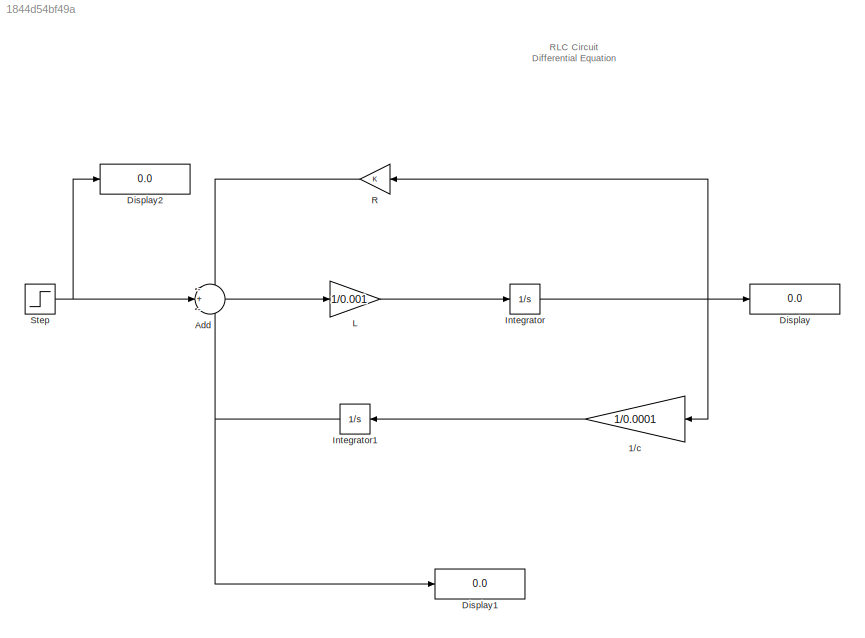
MODEL slx_1844d54bf49a
KIND model
CONFIG AbsTol = auto
CONFIG EnableMultiTasking = off
CONFIG FixedStep = auto
CONFIG MaxStep = auto
CONFIG MinStep = auto
CONFIG RelTol = 1e-3
CONFIG SampleTimeConstraint = Unconstrained
CONFIG SolverName = VariableStepAuto
CONFIG StartTime = 0.0
CONFIG StopTime = 10.0
BLOCK [Gain] 1//c
  Gain = 1/0.0001
BLOCK [Sum] Add
  Inputs = -+-
  Ports = [3, 1]
BLOCK [Display] Display
  Decimation = 1
  Ports = [1]
BLOCK [Display] Display1
  Decimation = 1
  Ports = [1]
BLOCK [Display] Display2
  Decimation = 1
  Ports = [1]
BLOCK [Integrator] Integrator
  Ports = [1, 1]
BLOCK [Integrator] Integrator1
  Ports = [1, 1]
BLOCK [Gain] L
  Gain = 1/0.001
BLOCK [Gain] R
BLOCK [Step] Step
  SampleTime = 0
ANNOTATION (root): RLC Circuit Differential Equation
LINE 1//c:1 -> Integrator1:1
LINE Add:1 -> L:1
NET Integrator1:1 -> Add:3, Display1:1
NET Integrator:1 -> 1//c:1, Display:1, R:1
LINE L:1 -> Integrator:1
LINE R:1 -> Add:1
NET Step:1 -> Add:2, Display2:1
note: NET lines group one-source signal fan-out (src -> all destinations, sorted); 1:1 wires keep LINE
